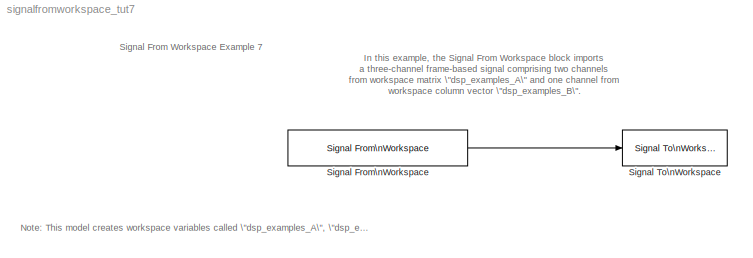
MODEL signalfromworkspace_tut7
KIND model
CONFIG AbsTol = auto
CONFIG FixedStep = auto
CONFIG MaxStep = auto
CONFIG MinStep = auto
CONFIG PostLoadFcn = set_param(gcs,'SimulationCommand','Update')
CONFIG PreLoadFcn = dsp_examples_A = [1:100;-1:-1:-100]'; dsp_examples_B = 5*ones(100,1); whos dsp_examples_*
CONFIG RelTol = 1e-3
CONFIG Solver = FixedStepDiscrete
CONFIG SolverMode = Auto
CONFIG StartTime = 0.0
CONFIG StopTime = 10.0
BLOCK [Reference] Signal From\nWorkspace  REF=dspsrcs4/Signal From\nWorkspace
  OutputAfterFinalValue = Setting to zero
  Ports = [0, 1]
  SourceBlock = dspsrcs4/Signal From\nWorkspace
  SourceType = Signal From Workspace
  Ts = 1
  X = [dsp_examples_A dsp_examples_B]
  nsamps = 4
BLOCK [Reference] Signal To\nWorkspace  REF=dspsnks4/Signal To\nWorkspace
  Decimation = 1
  FrameMode = Concatenate frames (2-D array)
  MaxDataPoints = inf
  Ports = [1]
  SourceBlock = dspsnks4/Signal To\nWorkspace
  SourceType = Signal To Workspace
  VariableName = dsp_examples_yout
ANNOTATION (root): In this example, the Signal From Workspace block imports\na three-channel frame-based signal comprising two channels\nfrom workspace matrix \"dsp_examples_A\" and one channel from\nworkspace column vector \"dsp_examples_B\".
ANNOTATION (root): Note: This model creates workspace variables called \"dsp_examples_A\", \"dsp_examples_B\", and \"dsp_examples_yout\".
ANNOTATION (root): Signal From Workspace Example 7
LINE Signal From\nWorkspace:1 -> Signal To\nWorkspace:1
